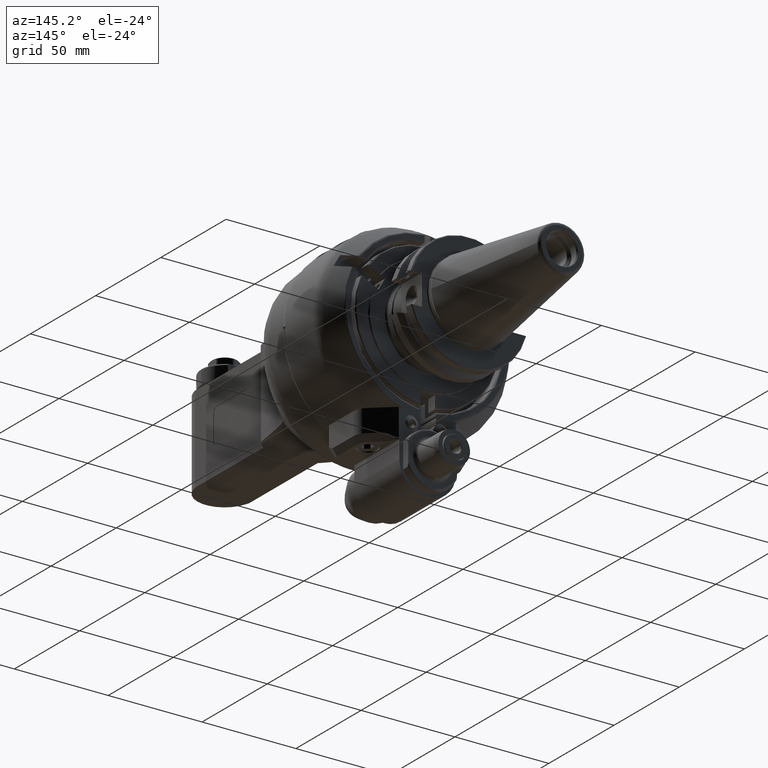
[diagram: clean part render]
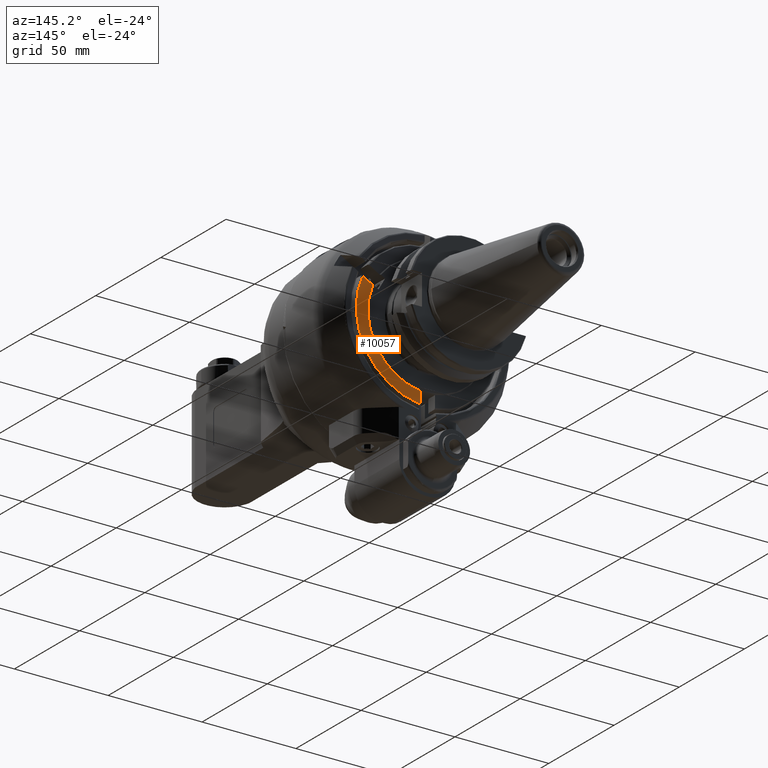
[diagram: same view with one face highlighted and labeled with its STEP entity id]
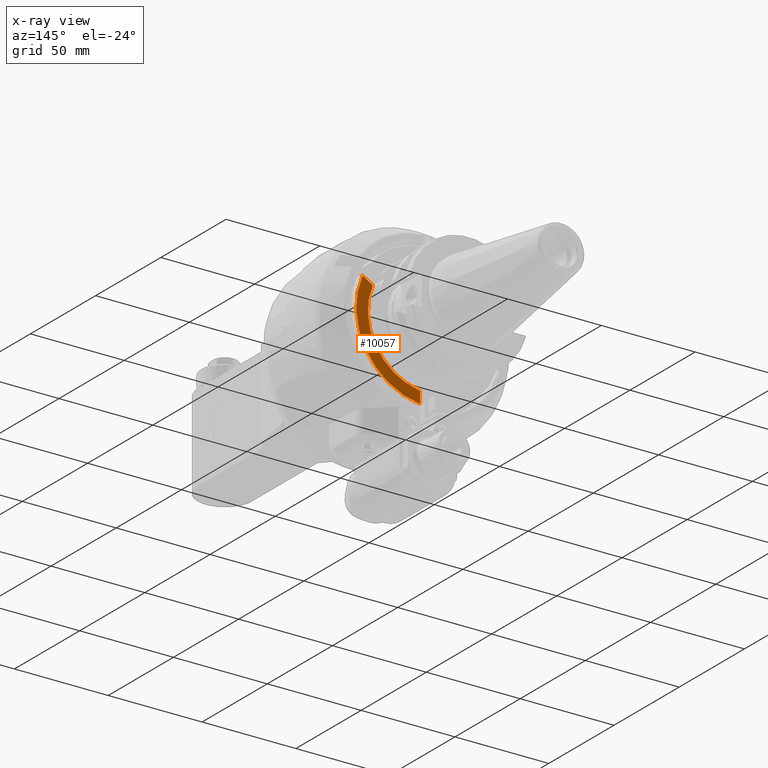
[diagram: x-ray of the same camera — body ghosted, the highlighted face saturated]
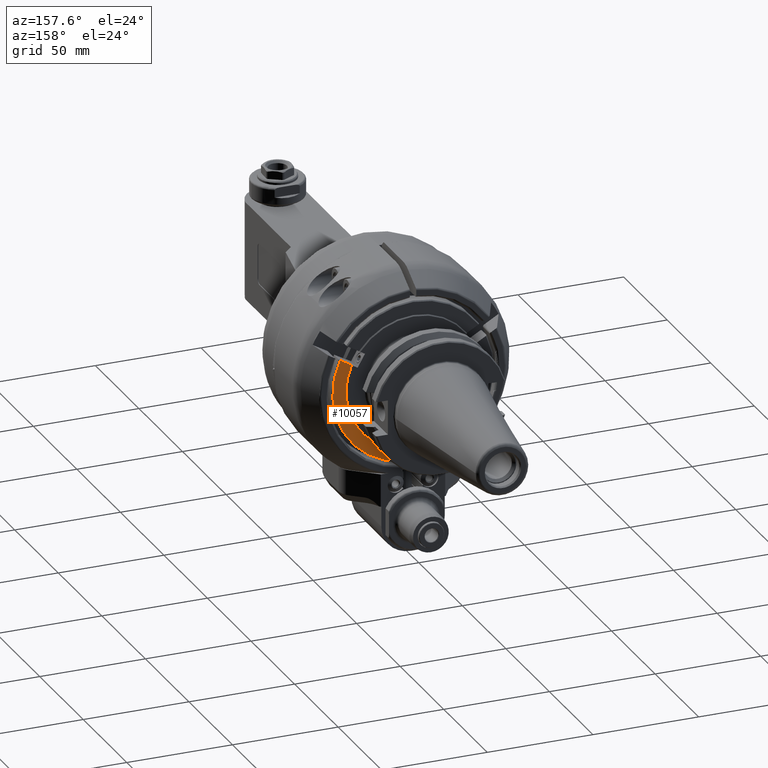
[diagram: same view with one face highlighted and labeled with its STEP entity id]
A machine part, auxiliary view. The second image highlights one B-rep face of the part: STEP entity #10057.
The next image is the same camera in x-ray: the body ghosted, the highlighted face saturated — about 0% of this face is hidden behind the body in this view.
A second angle (auxiliary view) of the same face is appended — the face is thin or edge-on in the first view.
In plain terms, the highlighted planar face has unit normal (0, 1, 0).
Its self-contained STEP definition (entity closure, byte-faithful):
#1104=CIRCLE('',#11141,31.75);
#1129=CIRCLE('',#11202,38.);
#1725=FACE_OUTER_BOUND('',#2412,.T.);
#2412=EDGE_LOOP('',(#8761,#8762,#8763,#8764));
#3071=LINE('',#19571,#3771);
#3106=LINE('',#19769,#3806);
#3771=VECTOR('',#13762,10.);
#3806=VECTOR('',#13891,6.28197553114879);
#4669=VERTEX_POINT('',#19568);
#4670=VERTEX_POINT('',#19570);
#4683=VERTEX_POINT('',#19614);
#4723=VERTEX_POINT('',#19765);
#6004=EDGE_CURVE('',#4670,#4669,#3071,.T.);
#6021=EDGE_CURVE('',#4669,#4683,#1104,.T.);
#6083=EDGE_CURVE('',#4683,#4723,#3106,.T.);
#6113=EDGE_CURVE('',#4723,#4670,#1129,.T.);
#8761=ORIENTED_EDGE('',*,*,#6113,.T.);
#8762=ORIENTED_EDGE('',*,*,#6004,.T.);
#8763=ORIENTED_EDGE('',*,*,#6021,.T.);
#8764=ORIENTED_EDGE('',*,*,#6083,.T.);
#9524=PLANE('',#11201);
#10057=ADVANCED_FACE('',(#1725),#9524,.T.);
#11141=AXIS2_PLACEMENT_3D('',#19618,#13781,#13782);
#11201=AXIS2_PLACEMENT_3D('',#19928,#13947,#13948);
#11202=AXIS2_PLACEMENT_3D('',#19929,#13949,#13950);
#13762=DIRECTION('',(0.,0.,1.));
#13781=DIRECTION('center_axis',(0.,-1.,0.));
#13782=DIRECTION('ref_axis',(0.86926923622807,0.,0.494338947431283));
#13891=DIRECTION('',(0.866025403784429,0.,0.500000000000017));
#13947=DIRECTION('center_axis',(0.,1.,0.));
#13948=DIRECTION('ref_axis',(-0.86926923622807,0.,-0.494338947431283));
#13949=DIRECTION('center_axis',(0.,1.,0.));
#13950=DIRECTION('ref_axis',(0.908396800327097,0.,0.418109140243899));
#19568=CARTESIAN_POINT('',(3.99951055760265,39.4985543943407,-31.4985430348102));
#19570=CARTESIAN_POINT('',(4.,39.5,-37.78888725538));
#19571=CARTESIAN_POINT('',(4.,39.5,-24.55152642015));
#19614=CARTESIAN_POINT('',(29.0787280165,39.5,12.74715956369));
#19618=CARTESIAN_POINT('Origin',(0.,39.5,0.));
#19765=CARTESIAN_POINT('',(34.51907841243,39.5,15.88814732927));
#19769=CARTESIAN_POINT('',(29.0787280165,39.5,12.74715956369));
#19928=CARTESIAN_POINT('Origin',(-30.95404959954,39.5,-17.6030528403));
#19929=CARTESIAN_POINT('Origin',(0.,39.5,0.));